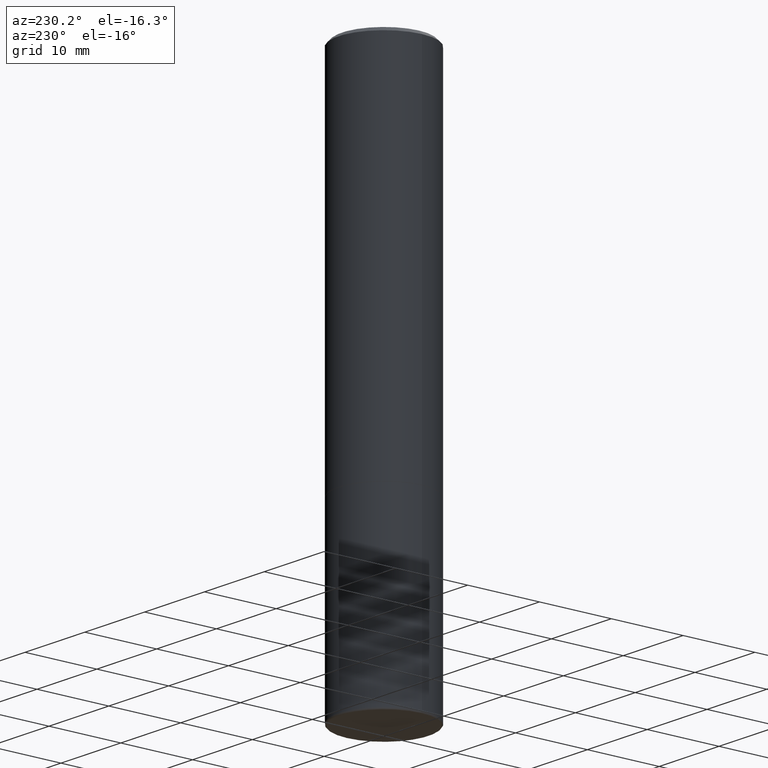
[diagram: clean part render]
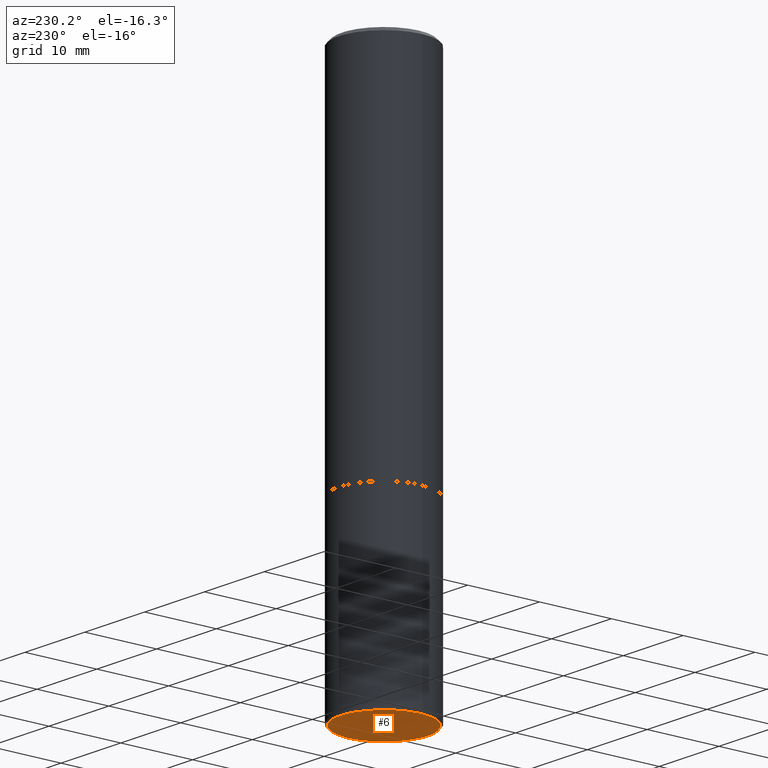
[diagram: same view with one face highlighted and labeled with its STEP entity id]
A machine part, auxiliary view. The second image highlights one B-rep face of the part: STEP entity #6.
In plain terms, the highlighted planar face has unit normal (0, -0, -1).
Its self-contained STEP definition (entity closure, byte-faithful):
#5 = FACE_OUTER_BOUND ( 'NONE', #326, .T. ) ;
#6 = ADVANCED_FACE ( 'NONE', ( #5 ), #322, .T. ) ;
#28 = CIRCLE ( 'NONE', #110, 0.2400000000000000466 ) ;
#33 = CARTESIAN_POINT ( 'NONE',  ( 1.210550456377282398E-28, -3.644824032368776532E-15, -2.999999999999999556 ) ) ;
#44 = CARTESIAN_POINT ( 'NONE',  ( 0.2400000000000000466, -1.215035505917413973E-14, -2.999999999999999556 ) ) ;
#59 = AXIS2_PLACEMENT_3D ( 'NONE', #33, #328, #227 ) ;
#62 = EDGE_CURVE ( 'NONE', #129, #415, #178, .T. ) ;
#110 = AXIS2_PLACEMENT_3D ( 'NONE', #156, #275, #242 ) ;
#126 = CARTESIAN_POINT ( 'NONE',  ( -0.2400000000000000466, -8.716156907222976683E-15, -2.999999999999999556 ) ) ;
#129 = VERTEX_POINT ( 'NONE', #44 ) ;
#148 = CARTESIAN_POINT ( 'NONE',  ( 7.336406418555408669E-29, -1.047444401652943478E-14, -2.999999999999999556 ) ) ;
#156 = CARTESIAN_POINT ( 'NONE',  ( 7.336406418555408669E-29, -1.047444401652943478E-14, -2.999999999999999556 ) ) ;
#178 = CIRCLE ( 'NONE', #301, 0.2400000000000000466 ) ;
#225 = ORIENTED_EDGE ( 'NONE', *, *, #62, .F. ) ;
#227 = DIRECTION ( 'NONE',  ( -1.000000000000000000, 6.982962677686265922E-15, -4.876176775795935793E-29 ) ) ;
#242 = DIRECTION ( 'NONE',  ( 1.000000000000000000, -6.982962677686266711E-15, 0.000000000000000000 ) ) ;
#247 = ORIENTED_EDGE ( 'NONE', *, *, #355, .F. ) ;
#275 = DIRECTION ( 'NONE',  ( -2.445468806185136597E-29, 3.491481338843145583E-15, 1.000000000000000000 ) ) ;
#301 = AXIS2_PLACEMENT_3D ( 'NONE', #148, #397, #404 ) ;
#322 = PLANE ( 'NONE',  #59 ) ;
#326 = EDGE_LOOP ( 'NONE', ( #225, #247 ) ) ;
#328 = DIRECTION ( 'NONE',  ( 2.438088387897960049E-29, -3.491481338843145188E-15, -1.000000000000000000 ) ) ;
#355 = EDGE_CURVE ( 'NONE', #415, #129, #28, .T. ) ;
#397 = DIRECTION ( 'NONE',  ( -2.445468806185136597E-29, 3.491481338843145583E-15, 1.000000000000000000 ) ) ;
#404 = DIRECTION ( 'NONE',  ( 1.000000000000000000, -6.982962677686266711E-15, 0.000000000000000000 ) ) ;
#415 = VERTEX_POINT ( 'NONE', #126 ) ;